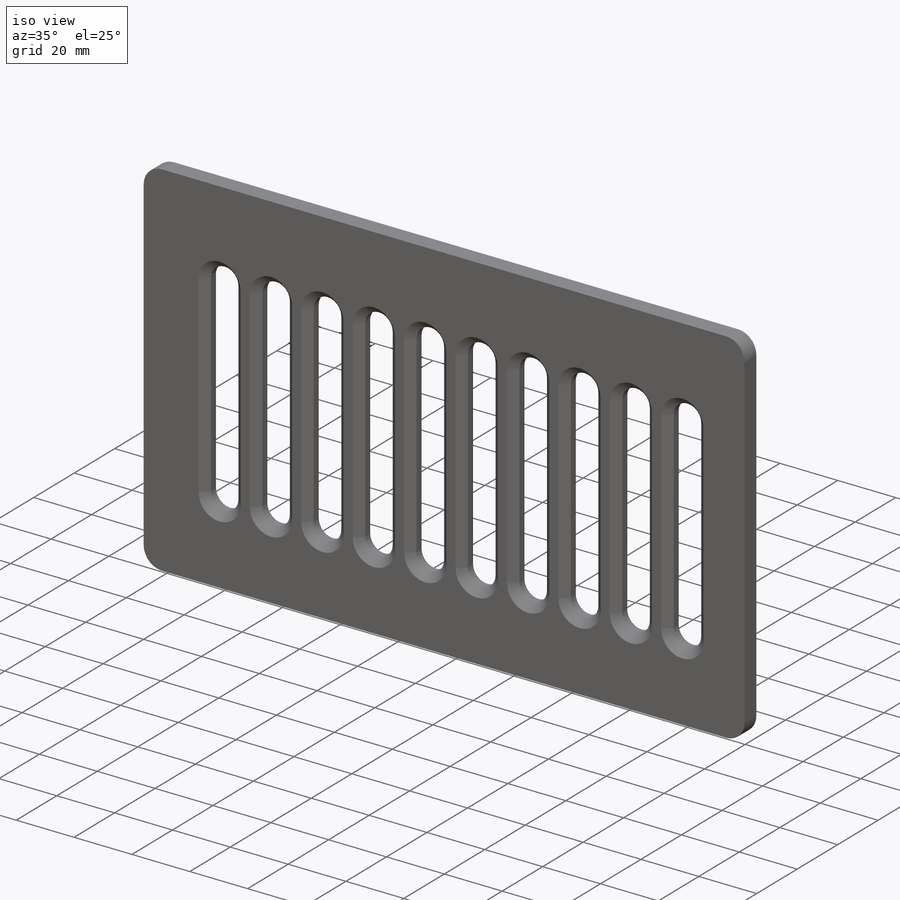
[diagram: iso view]
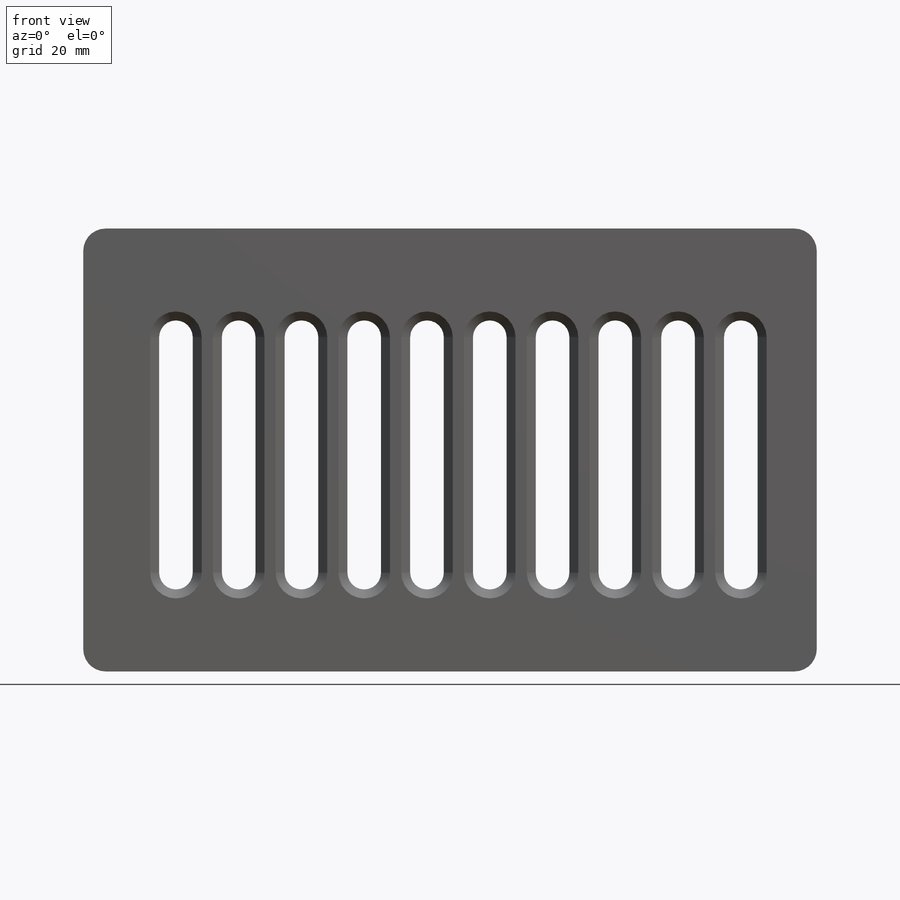
[diagram: front view]
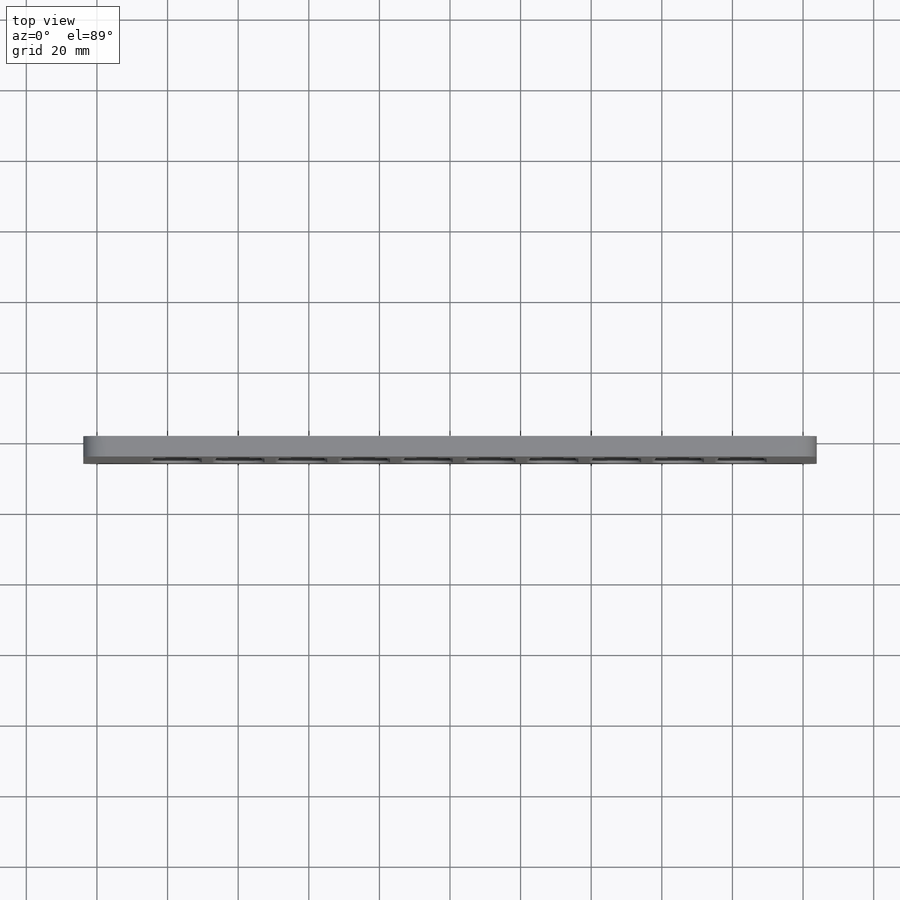
[diagram: top view]
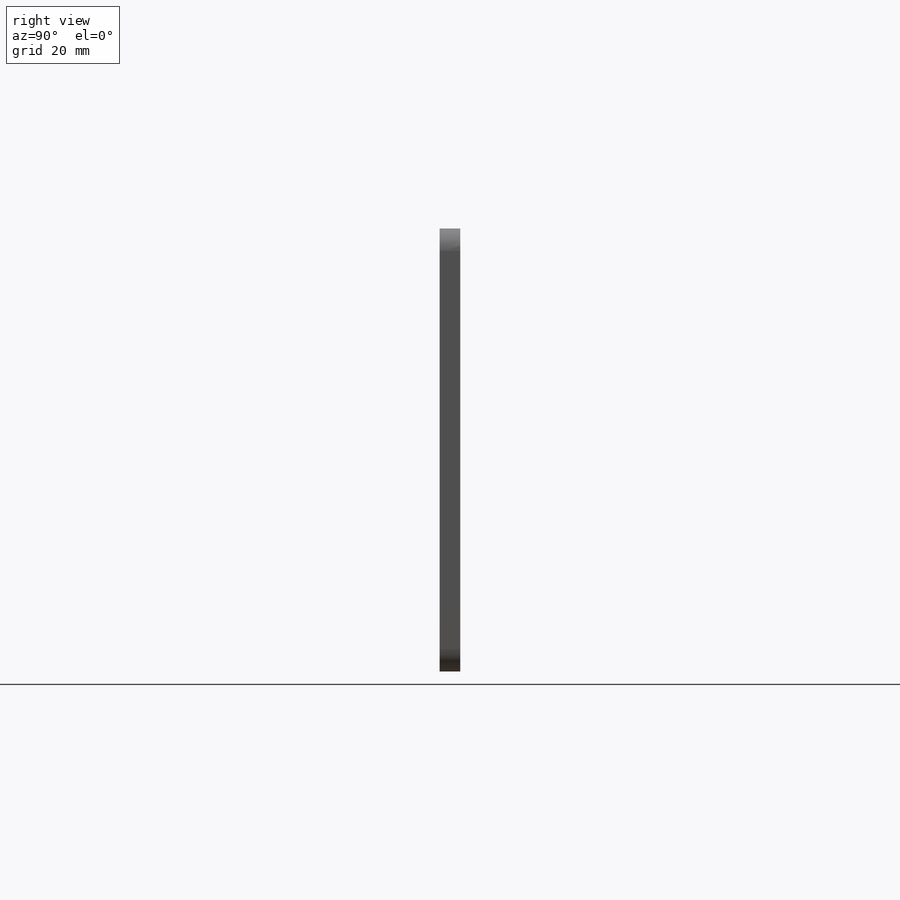
[diagram: right view]
SOLIDWORKS PART (.sldprt)
format: sldprt  version: not decoded by parser v0  size: 364,032 bytes
history: native  units: mm
features: sketch x3, extrude x2, material x1, cut_extrude x1, chamfer x1, fillet x1, pattern_linear x1 (+12 scaffold rows collapsed)
feature tree (22):
  scaffold x12  (default folders/planes/origin — collapsed)
  material  "Material <not specified>"
  sketch  "Sketch1"  dims[D3=6.35mm D1=207.772mm D2=125.476mm]
  extrude  "Boss-Extrude1"  Depth=5.842mm
  sketch  "Sketch4"  dims[D1=50.8mm D2=12.7mm]
  extrude  "Boss-Extrude2"  Depth=1.27mm
  sketch  "Sketch5"  dims[D2=4.7625mm D1=66.675mm]
  cut_extrude  "Cut-Extrude1"  [1 undecoded]
  chamfer  "Chamfer1"  Distance=2.54mm Angle=45deg
  fillet  "Fillet1"  Radius=1.27mm
  pattern_linear  "LPattern1"  Count1=5 Count2=6 Spacing1=17.78mm Spacing2=17.78mm
decode coverage: 8 of 9 modeling features carry decoded parameters
note: 1 parameter value undecoded
note: suppression state not decoded; provenance and decode notes live in map.json
